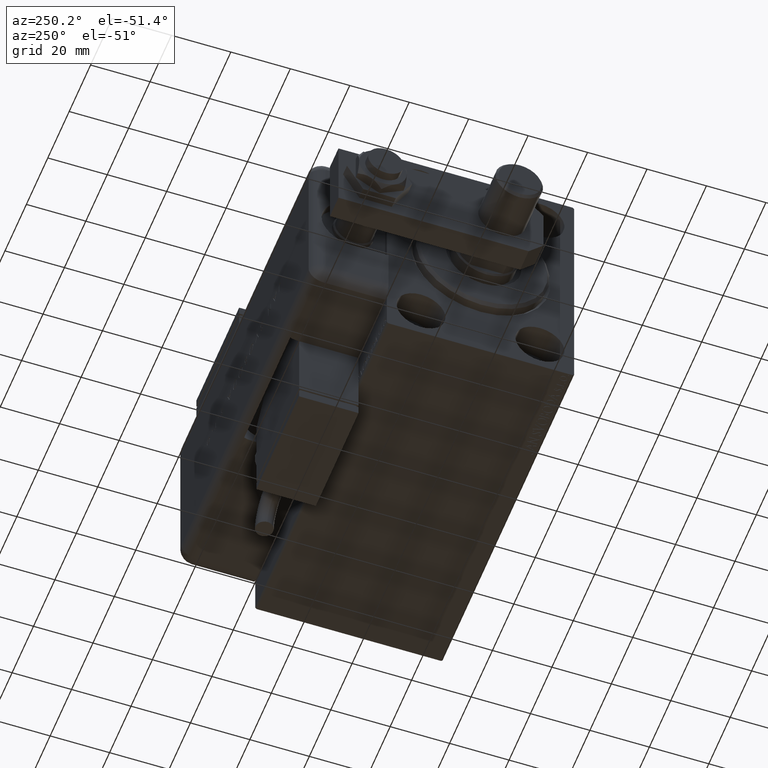
[diagram: clean part render]
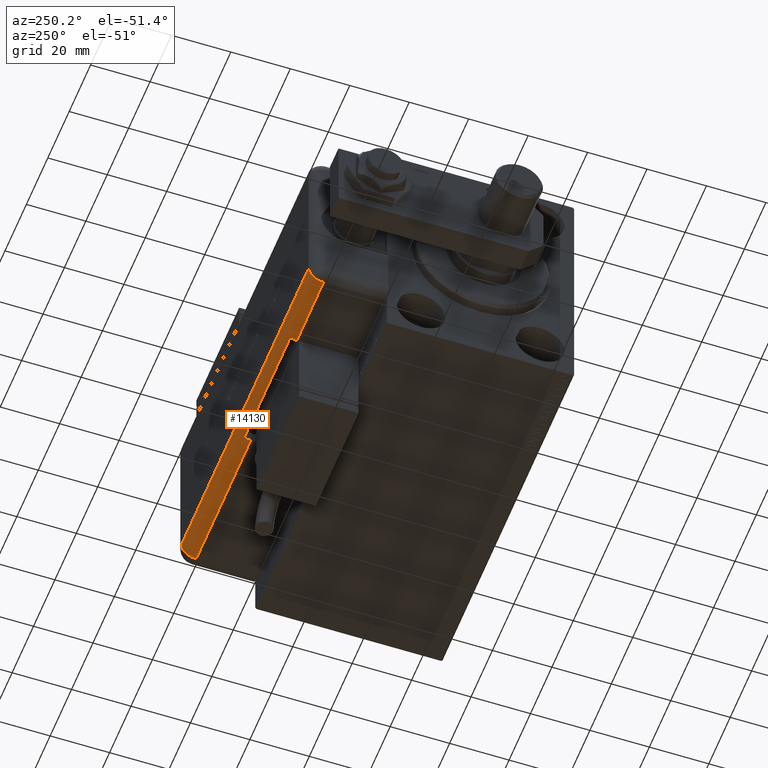
[diagram: same view with one face highlighted and labeled with its STEP entity id]
A machine part, auxiliary view. The second image highlights one B-rep face of the part: STEP entity #14130.
In plain terms, the highlighted cylindrical surface (edge-blend (fillet) strip) has radius 5 mm, axis along (1, -0, -0).
Its self-contained STEP definition (entity closure, byte-faithful):
#1012 = AXIS2_PLACEMENT_3D ( 'NONE', #22276, #4382, #40484 ) ;
#3695 = CIRCLE ( 'NONE', #34696, 5.000000000000000888 ) ;
#4377 = VERTEX_POINT ( 'NONE', #13657 ) ;
#4382 = DIRECTION ( 'NONE',  ( -0.000000000000000000, -0.000000000000000000, 1.000000000000000000 ) ) ;
#5643 = VERTEX_POINT ( 'NONE', #23169 ) ;
#6414 = CARTESIAN_POINT ( 'NONE',  ( -28.48998886412872267, 22.99999999999998934, 124.0000000000000000 ) ) ;
#6455 = VERTEX_POINT ( 'NONE', #22587 ) ;
#8358 = ORIENTED_EDGE ( 'NONE', *, *, #17312, .F. ) ;
#10050 = EDGE_LOOP ( 'NONE', ( #32324, #13630, #30246, #24481, #38241, #55094, #26225, #8358 ) ) ;
#11802 = DIRECTION ( 'NONE',  ( 0.000000000000000000, -0.000000000000000000, -1.000000000000000000 ) ) ;
#11929 = EDGE_CURVE ( 'NONE', #14718, #6455, #36513, .T. ) ;
#13630 = ORIENTED_EDGE ( 'NONE', *, *, #22692, .F. ) ;
#13657 = CARTESIAN_POINT ( 'NONE',  ( -28.99999999999999645, 20.79999999999998295, 5.000000000000004441 ) ) ;
#13999 = CARTESIAN_POINT ( 'NONE',  ( -28.99999999999999645, 20.79999999999998295, 56.00000000000000711 ) ) ;
#14042 = CARTESIAN_POINT ( 'NONE',  ( -28.99999999999999645, 20.79999999999998295, 99.00000000000000000 ) ) ;
#14130 = ADVANCED_FACE ( 'NONE', ( #34459 ), #15974, .T. ) ;
#14718 = VERTEX_POINT ( 'NONE', #36273 ) ;
#15974 = CYLINDRICAL_SURFACE ( 'NONE', #43339, 5.000000000000000888 ) ;
#16001 = EDGE_CURVE ( 'NONE', #41810, #34137, #3695, .T. ) ;
#17312 = EDGE_CURVE ( 'NONE', #34137, #4377, #23009, .T. ) ;
#17928 = DIRECTION ( 'NONE',  ( -1.000000000000000000, 4.163336342344336238E-15, 0.000000000000000000 ) ) ;
#20562 = CARTESIAN_POINT ( 'NONE',  ( -23.99999999999999645, 20.79999999999998295, 99.00000000000000000 ) ) ;
#21061 = DIRECTION ( 'NONE',  ( -0.000000000000000000, -0.000000000000000000, 1.000000000000000000 ) ) ;
#22115 = VECTOR ( 'NONE', #50627, 1000.000000000000000 ) ;
#22276 = CARTESIAN_POINT ( 'NONE',  ( -23.99999999999999645, 20.79999999999998295, 5.000000000000004441 ) ) ;
#22587 = CARTESIAN_POINT ( 'NONE',  ( -28.99999999999999645, 20.79999999999998295, 124.0000000000000000 ) ) ;
#22692 = EDGE_CURVE ( 'NONE', #5643, #41810, #42216, .T. ) ;
#23009 = LINE ( 'NONE', #60023, #22115 ) ;
#23169 = CARTESIAN_POINT ( 'NONE',  ( -28.48998886412872267, 22.99999999999998934, 99.00000000000000000 ) ) ;
#24481 = ORIENTED_EDGE ( 'NONE', *, *, #42421, .F. ) ;
#24896 = DIRECTION ( 'NONE',  ( 0.000000000000000000, 0.000000000000000000, -1.000000000000000000 ) ) ;
#25269 = CIRCLE ( 'NONE', #26271, 5.000000000000000888 ) ;
#25515 = EDGE_CURVE ( 'NONE', #58532, #4377, #50395, .T. ) ;
#25612 = CARTESIAN_POINT ( 'NONE',  ( -23.99999999999999645, 25.79999999999998295, 124.0000000000000000 ) ) ;
#25912 = LINE ( 'NONE', #25612, #56655 ) ;
#26225 = ORIENTED_EDGE ( 'NONE', *, *, #25515, .T. ) ;
#26271 = AXIS2_PLACEMENT_3D ( 'NONE', #20562, #11802, #30268 ) ;
#29964 = CARTESIAN_POINT ( 'NONE',  ( -23.99999999999999645, 25.79999999999998295, 5.000000000000004441 ) ) ;
#30246 = ORIENTED_EDGE ( 'NONE', *, *, #31542, .F. ) ;
#30268 = DIRECTION ( 'NONE',  ( 1.000000000000000000, 0.000000000000000000, 0.000000000000000000 ) ) ;
#30747 = DIRECTION ( 'NONE',  ( 0.000000000000000000, 0.000000000000000000, -1.000000000000000000 ) ) ;
#31542 = EDGE_CURVE ( 'NONE', #46352, #5643, #25269, .T. ) ;
#32324 = ORIENTED_EDGE ( 'NONE', *, *, #16001, .F. ) ;
#34137 = VERTEX_POINT ( 'NONE', #13999 ) ;
#34459 = FACE_OUTER_BOUND ( 'NONE', #10050, .T. ) ;
#34696 = AXIS2_PLACEMENT_3D ( 'NONE', #45522, #40964, #17928 ) ;
#34762 = DIRECTION ( 'NONE',  ( 0.000000000000000000, 0.000000000000000000, -1.000000000000000000 ) ) ;
#35609 = DIRECTION ( 'NONE',  ( -1.000000000000000000, 0.000000000000000000, 0.000000000000000000 ) ) ;
#36273 = CARTESIAN_POINT ( 'NONE',  ( -23.99999999999999645, 25.79999999999998295, 124.0000000000000000 ) ) ;
#36513 = CIRCLE ( 'NONE', #54925, 5.000000000000000888 ) ;
#38241 = ORIENTED_EDGE ( 'NONE', *, *, #11929, .F. ) ;
#39245 = CARTESIAN_POINT ( 'NONE',  ( -23.99999999999999645, 20.79999999999998295, 124.0000000000000000 ) ) ;
#40484 = DIRECTION ( 'NONE',  ( -1.000000000000000000, 0.000000000000000000, 0.000000000000000000 ) ) ;
#40746 = LINE ( 'NONE', #59270, #45876 ) ;
#40964 = DIRECTION ( 'NONE',  ( -0.000000000000000000, -0.000000000000000000, 1.000000000000000000 ) ) ;
#41810 = VERTEX_POINT ( 'NONE', #57080 ) ;
#42216 = LINE ( 'NONE', #6414, #43640 ) ;
#42421 = EDGE_CURVE ( 'NONE', #6455, #46352, #40746, .T. ) ;
#42947 = CARTESIAN_POINT ( 'NONE',  ( -23.99999999999999645, 20.79999999999998295, 124.0000000000000000 ) ) ;
#43339 = AXIS2_PLACEMENT_3D ( 'NONE', #42947, #34762, #52969 ) ;
#43640 = VECTOR ( 'NONE', #24896, 1000.000000000000000 ) ;
#43810 = DIRECTION ( 'NONE',  ( -0.000000000000000000, -0.000000000000000000, 1.000000000000000000 ) ) ;
#45522 = CARTESIAN_POINT ( 'NONE',  ( -23.99999999999999645, 20.79999999999998295, 56.00000000000000711 ) ) ;
#45876 = VECTOR ( 'NONE', #30747, 1000.000000000000000 ) ;
#46352 = VERTEX_POINT ( 'NONE', #14042 ) ;
#49021 = EDGE_CURVE ( 'NONE', #58532, #14718, #25912, .T. ) ;
#50395 = CIRCLE ( 'NONE', #1012, 5.000000000000000888 ) ;
#50627 = DIRECTION ( 'NONE',  ( 0.000000000000000000, 0.000000000000000000, -1.000000000000000000 ) ) ;
#52969 = DIRECTION ( 'NONE',  ( -1.000000000000000000, 0.000000000000000000, 0.000000000000000000 ) ) ;
#54925 = AXIS2_PLACEMENT_3D ( 'NONE', #39245, #43810, #35609 ) ;
#55094 = ORIENTED_EDGE ( 'NONE', *, *, #49021, .F. ) ;
#56655 = VECTOR ( 'NONE', #21061, 1000.000000000000000 ) ;
#57080 = CARTESIAN_POINT ( 'NONE',  ( -28.48998886412872267, 22.99999999999998934, 56.00000000000000711 ) ) ;
#58532 = VERTEX_POINT ( 'NONE', #29964 ) ;
#59270 = CARTESIAN_POINT ( 'NONE',  ( -28.99999999999999645, 20.79999999999998295, 124.0000000000000000 ) ) ;
#60023 = CARTESIAN_POINT ( 'NONE',  ( -28.99999999999999645, 20.79999999999998295, 124.0000000000000000 ) ) ;